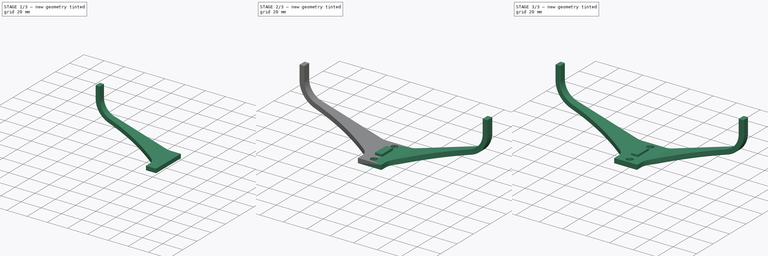
[diagram: build sequence overview — one tinted view per stage of 3, left to right]
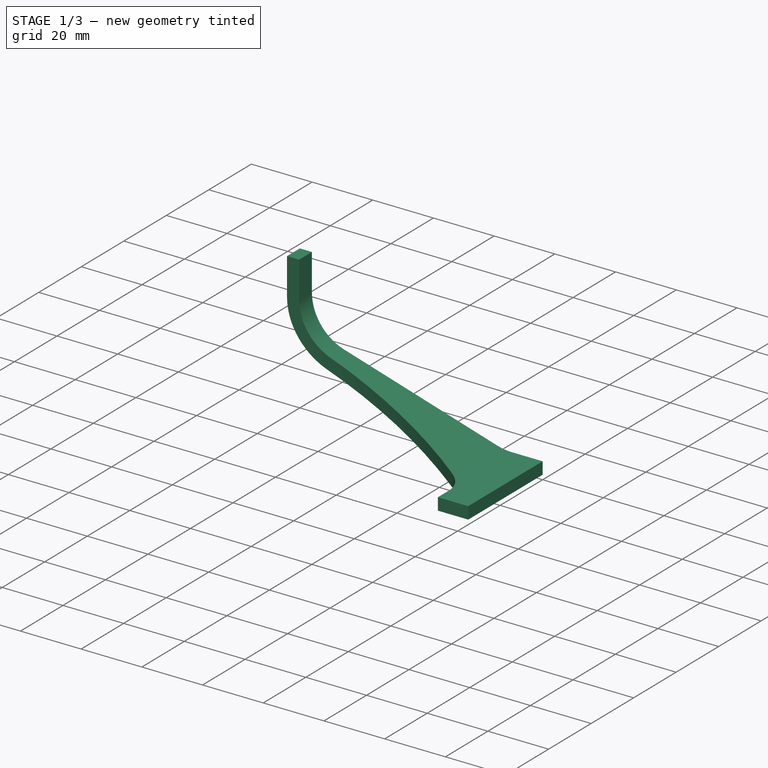
[diagram: stage 1 of 3 — iso view after this stage's code; geometry added in this stage tinted green]
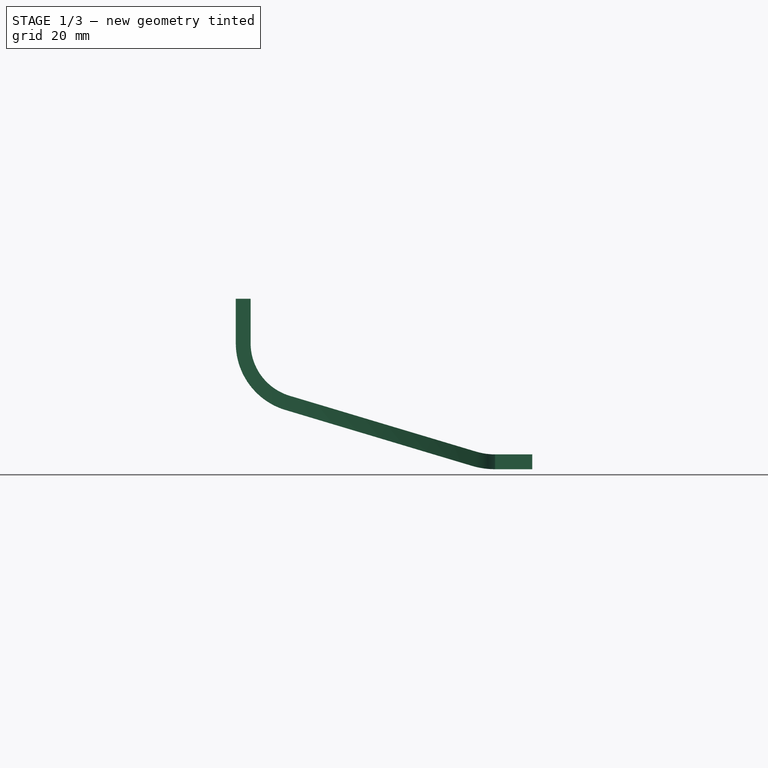
[diagram: stage 1 of 3 — front view after this stage's code; geometry added in this stage tinted green]
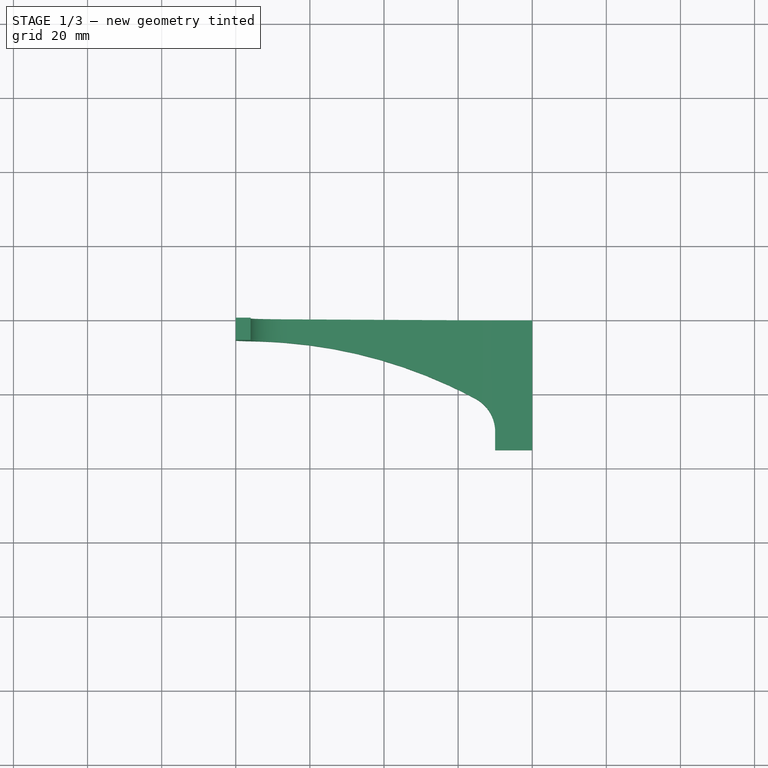
[diagram: stage 1 of 3 — top view after this stage's code; geometry added in this stage tinted green]
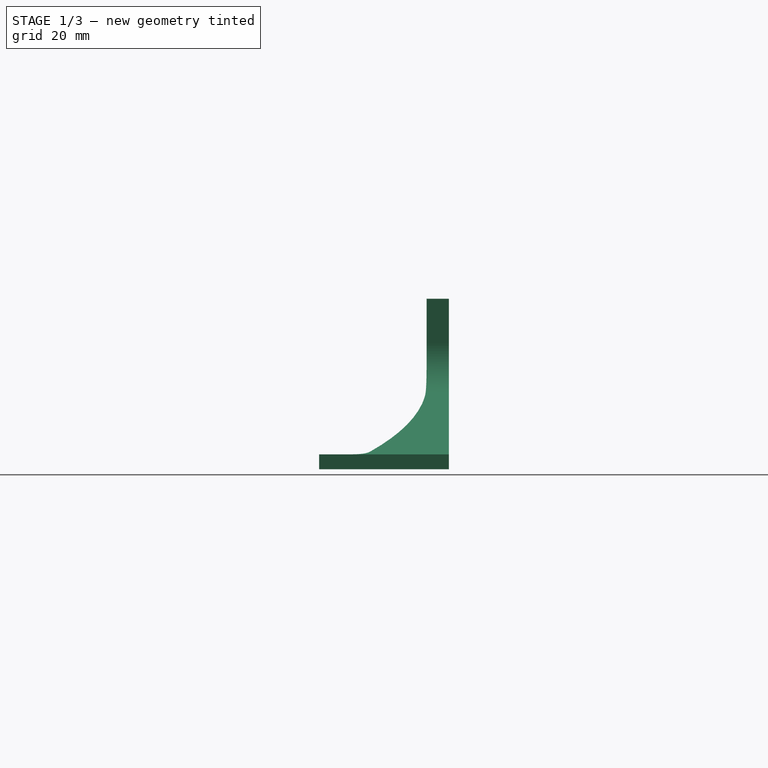
[diagram: stage 1 of 3 — right view after this stage's code; geometry added in this stage tinted green]
FCSTD DOCUMENT  (FreeCAD 0.22R38314 (Git))
Label: alignment
License: All rights reserved
LicenseURL: http://en.wikipedia.org/wiki/All_rights_reserved
objects: Sketcher::SketchObject×5, PartDesign::Pad×3, PartDesign::Pocket×2, PartDesign::Mirrored×1, PartDesign::Chamfer×1, PartDesign::Body×1
note: 26 computed .brp shape members not serialized (recipe doc carries the construction recipe); baked Part::Feature solids carry a one-line shape summary decoded from their .brp

FEATURE [Sketcher::SketchObject] Sketch
  AttachmentSupport = -> [XZ_Plane]
  FullyConstrained = true
  MapMode = 5
  Placement = pos=(0,0,0) rot=(1,0,0;1.5708rad)
  sketch-geometry (16):
    g0: LineSegment StartX=-65.441 StartY=19.815 StartZ=0 EndX=-15.1645 EndY=4.75679 EndZ=0
    g1: LineSegment StartX=-10 StartY=4 StartZ=0 EndX=0 EndY=4 EndZ=0
    g2: LineSegment StartX=0 StartY=4 StartZ=0 EndX=0 EndY=0 EndZ=0
    g3: LineSegment StartX=0 StartY=0 StartZ=0 EndX=-10 EndY=0 EndZ=0
    g4: LineSegment StartX=-16.3121 StartY=0.924971 StartZ=0 EndX=-66.5886 EndY=15.9832 EndZ=0
    g5: LineSegment StartX=-80 StartY=34 StartZ=0 EndX=-76 EndY=34 EndZ=0
    g6: ArcOfCircle CenterX=-61.1924 CenterY=34 CenterZ=0 NormalX=0 NormalY=0 NormalZ=1 AngleXU=0 Radius=14.8076 StartAngle=3.14159 EndAngle=4.42138
    g7: ArcOfCircle CenterX=-61.1924 CenterY=34 CenterZ=0 NormalX=0 NormalY=0 NormalZ=1 AngleXU=0 Radius=18.8076 StartAngle=3.14159 EndAngle=4.42138
    g8: GeomPoint X=-80 Y=20 Z=0
    g9: ArcOfCircle CenterX=-10 CenterY=22 CenterZ=0 NormalX=0 NormalY=0 NormalZ=1 AngleXU=0 Radius=18 StartAngle=4.42138 EndAngle=4.71239
    g10: GeomPoint X=-12.6377 Y=4 Z=0
    g11: ArcOfCircle CenterX=-10 CenterY=22 CenterZ=0 NormalX=0 NormalY=0 NormalZ=1 AngleXU=0 Radius=22 StartAngle=4.42138 EndAngle=4.71239
    g12: GeomPoint X=-13.2238 Y=0 Z=0
    g13: LineSegment StartX=-76 StartY=34 StartZ=0 EndX=-76 EndY=46 EndZ=0
    g14: LineSegment StartX=-76 StartY=46 StartZ=0 EndX=-80 EndY=46 EndZ=0
    g15: LineSegment StartX=-80 StartY=46 StartZ=0 EndX=-80 EndY=34 EndZ=0
  constraints (41):
    c: Horizontal(g1)
    c: Coincident(g1,g2)
    c: PointOnObject(g2,g-2)
    c: Vertical(g2)
    c: Coincident(g2,g3)
    c: Horizontal(g5)
    c: Horizontal(g3)
    c: DistanceY(g2,g2) = 4
    c: DistanceX(g8,g1) = 80
    c: DistanceX(g5,g5) = 4
    c: Parallel(g4,g0)
    c: PointOnObject(g2,g-1)
    c: Perpendicular(g6,g5)
    c: Tangent(g0,g6) = -1.5708
    c: Coincident(g6,g5)
    c: DistanceY(g8,g5) = 14
    c: PointOnObject(g8,g4)
    c: Tangent(g4,g7) = 1.5708
    c: DistanceY(g10,g5) = 30
    c: Coincident(g7,g5)
    c: Vertical(g8,g5)
    c: Perpendicular(g7,g5)
    c: PointOnObject(g10,g1)
    c: PointOnObject(g10,g0)
    c: Tangent(g1,g9) = -1.5708
    c: Tangent(g0,g9) = -1.5708
    c: DistanceX(g1,g1) = 10
    c: PointOnObject(g12,g3)
    c: PointOnObject(g12,g4)
    c: Tangent(g3,g11) = 1.5708
    c: Tangent(g4,g11) = 1.5708
    c: Coincident(g9,g11)
    c: Radius(g9) = 18
    c: Coincident(g13,g14)
    c: Coincident(g14,g15)
    c: Horizontal(g14)
    c: Vertical(g13)
    c: Vertical(g15)
    c: DistanceY(g15,g15) = 12
    c: Coincident(g15,g5)
    c: Coincident(g13,g5)
FEATURE [PartDesign::Pad] Pad
  Direction = (0,-1,2e-16)
  Length = 35
  Length2 = 10
  Placement = pos=(0,0,0) rot=(1,0,0;1.5708rad)
  Profile = -> Sketch
  ReferenceAxis = -> Sketch [N_Axis]
  Suppressed = false
  Type = 0
FEATURE [Sketcher::SketchObject] Sketch001
  AttachmentSupport = -> [XY_Plane]
  ExternalGeometry = -> [Pad]
  FullyConstrained = true
  MapMode = 5
  sketch-geometry (6):
    g0: LineSegment StartX=-80 StartY=-6 StartZ=0 EndX=-76 EndY=-6 EndZ=0
    g1: ArcOfCircle CenterX=-76 CenterY=-135 CenterZ=0 NormalX=0 NormalY=0 NormalZ=1 AngleXU=0 Radius=129 StartAngle=1.08084 EndAngle=1.5708
    g2: LineSegment StartX=-10 StartY=-30 StartZ=0 EndX=-10 EndY=-35 EndZ=0
    g3: LineSegment StartX=-10 StartY=-35 StartZ=0 EndX=-80 EndY=-35 EndZ=0
    g4: LineSegment StartX=-80 StartY=-35 StartZ=0 EndX=-80 EndY=-6 EndZ=0
    g5: ArcOfCircle CenterX=-20 CenterY=-30 CenterZ=0 NormalX=0 NormalY=0 NormalZ=1 AngleXU=0 Radius=10 StartAngle=0 EndAngle=1.08084
  constraints (17):
    c: Tangent(g0,g1) = 1.5708
    c: Vertical(g2)
    c: Coincident(g2,g3)
    c: Horizontal(g3)
    c: Coincident(g3,g4)
    c: Coincident(g4,g0)
    c: Vertical(g4)
    c: PointOnObject(g-3,g4)
    c: PointOnObject(g0,g-4)
    c: PointOnObject(g-6,g2)
    c: DistanceY(g0,g-3) = 6
    c: Tangent(g1,g5) = -1.5708
    c: Tangent(g2,g5) = 1.5708
    c: Radius(g5) = 10
    c: PointOnObject(g-5,g3)
    c: DistanceY(g2,g-6) = 30
    c: Horizontal(g0)
FEATURE [PartDesign::Pocket] Pocket
  BaseFeature = -> Pad
  Direction = (0,0,-1)
  Length = 5
  Length2 = 5
  Placement = pos=(0,0,0) rot=(1,0,0;1.5708rad)
  Profile = -> Sketch001
  ReferenceAxis = -> Sketch001 [N_Axis]
  Reversed = true
  Suppressed = false
  Type = 1
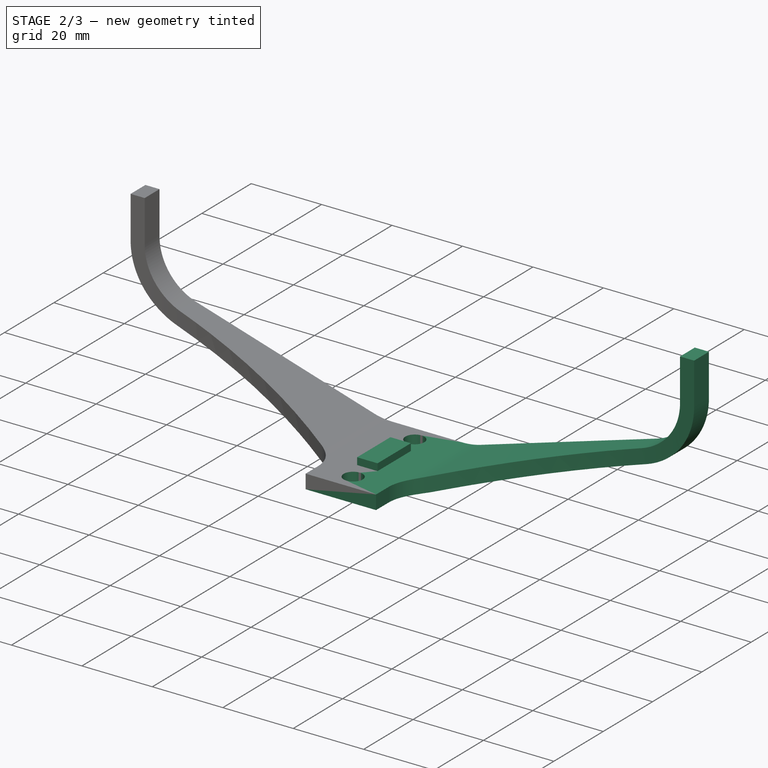
[diagram: stage 2 of 3 — iso view after this stage's code; geometry added in this stage tinted green]
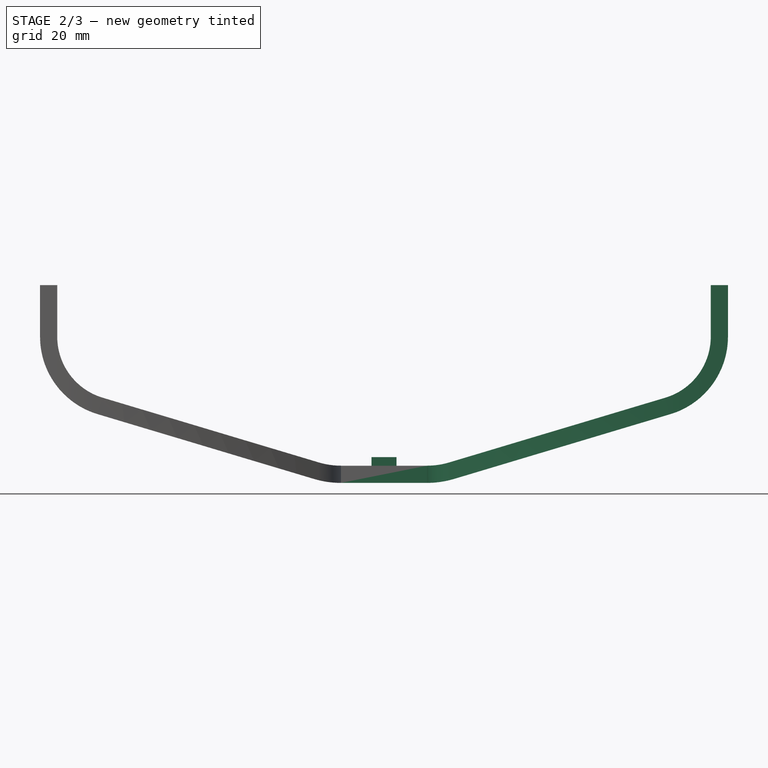
[diagram: stage 2 of 3 — front view after this stage's code; geometry added in this stage tinted green]
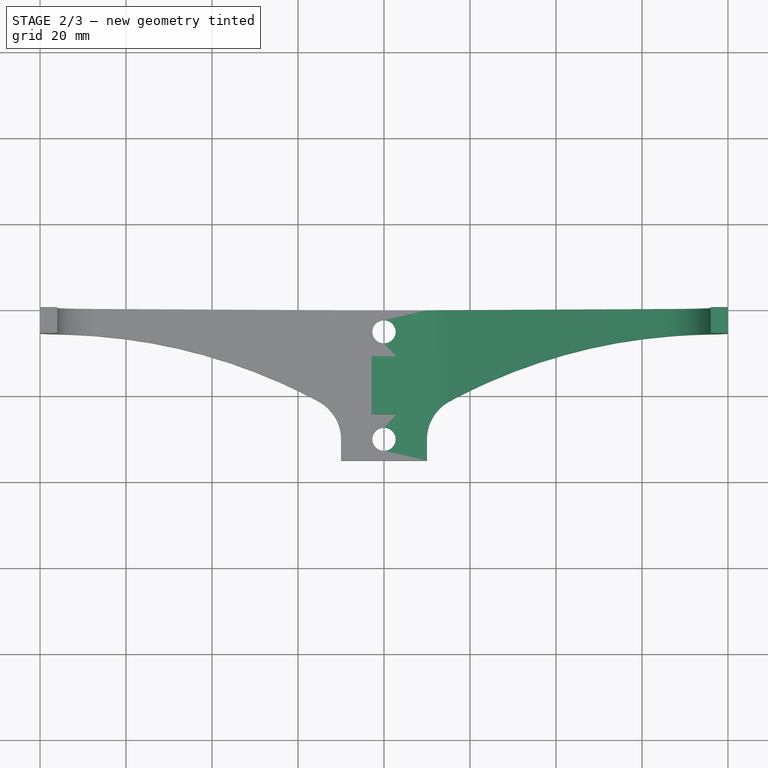
[diagram: stage 2 of 3 — top view after this stage's code; geometry added in this stage tinted green]
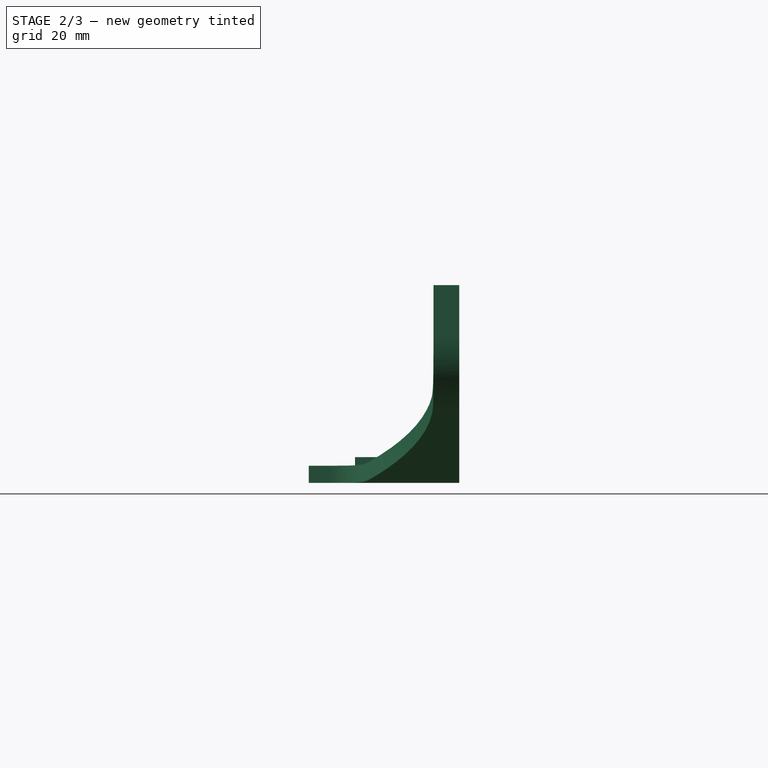
[diagram: stage 2 of 3 — right view after this stage's code; geometry added in this stage tinted green]
FEATURE [PartDesign::Mirrored] Mirrored
  BaseFeature = -> Pocket
  MirrorPlane = -> YZ_Plane
  Placement = pos=(0,0,0) rot=(1,0,0;1.5708rad)
  Refine = true
  Suppressed = false
  TransformMode = 1
FEATURE [Sketcher::SketchObject] Sketch002
  AttachmentSupport = -> [Mirrored]
  FullyConstrained = true
  MapMode = 5
  Placement = pos=(0,9e-16,4) rot=(0,0,1;3.14159rad)
  sketch-geometry (2):
    g0: Circle CenterX=0 CenterY=30 CenterZ=0 NormalX=0 NormalY=0 NormalZ=1 AngleXU=0 Radius=2.7
    g1: Circle CenterX=0 CenterY=5 CenterZ=0 NormalX=0 NormalY=0 NormalZ=1 AngleXU=0 Radius=2.7
  constraints (6):
    c: Equal(g0,g1)
    c: Diameter(g0) = 5.4
    c: Vertical(g0,g1)
    c: PointOnObject(g1,g-2)
    c: DistanceY(g-1,g1) = 5
    c: DistanceY(g1,g0) = 25
FEATURE [PartDesign::Pocket] Pocket001
  BaseFeature = -> Mirrored
  Direction = (0,0,-1)
  Length = 5
  Length2 = 5
  Placement = pos=(0,0,0) rot=(1,0,0;1.5708rad)
  Profile = -> Sketch002
  ReferenceAxis = -> Sketch002 [N_Axis]
  Suppressed = false
  Type = 0
FEATURE [Sketcher::SketchObject] Sketch003
  AttachmentSupport = -> [Pocket001]
  ExternalGeometry = -> [Pocket001]
  FullyConstrained = true
  MapMode = 5
  Placement = pos=(0,9e-16,4) rot=(0,0,1;3.14159rad)
  sketch-geometry (6):
    g0: LineSegment StartX=-2.9 StartY=24.25 StartZ=0 EndX=-2.9 EndY=10.75 EndZ=0
    g1: LineSegment StartX=-2.9 StartY=10.75 StartZ=0 EndX=2.9 EndY=10.75 EndZ=0
    g2: LineSegment StartX=2.9 StartY=10.75 StartZ=0 EndX=2.9 EndY=24.25 EndZ=0
    g3: LineSegment StartX=2.9 StartY=24.25 StartZ=0 EndX=-2.9 EndY=24.25 EndZ=0
    g4: Circle CenterX=0 CenterY=30 CenterZ=0 NormalX=0 NormalY=0 NormalZ=1 AngleXU=0 Radius=5.75
    g5: Circle CenterX=0 CenterY=5 CenterZ=0 NormalX=0 NormalY=0 NormalZ=1 AngleXU=0 Radius=5.75
  constraints (17):
    c: Coincident(g0,g1)
    c: Coincident(g1,g2)
    c: Coincident(g2,g3)
    c: Coincident(g3,g0)
    c: Vertical(g0)
    c: Vertical(g2)
    c: Horizontal(g3)
    c: DistanceX(g3,g3) = 5.8
    c: Symmetric(g1,g0,g-2)
    c: Coincident(g4,g-3)
    c: Coincident(g5,g-4)
    c: Diameter(g-4) = 5.4
    c: Diameter(g-3) = 5.4
    c: Equal(g4,g5)
    c: Diameter(g4) = 11.5
    c: Tangent(g4,g3)
    c: Tangent(g1,g5)
FEATURE [PartDesign::Pad] Pad001
  BaseFeature = -> Pocket001
  Direction = (0,0,1)
  Length = 2
  Length2 = 10
  Placement = pos=(0,0,0) rot=(1,0,0;1.5708rad)
  Profile = -> Sketch003
  ReferenceAxis = -> Sketch003 [N_Axis]
  Suppressed = false
  Type = 0
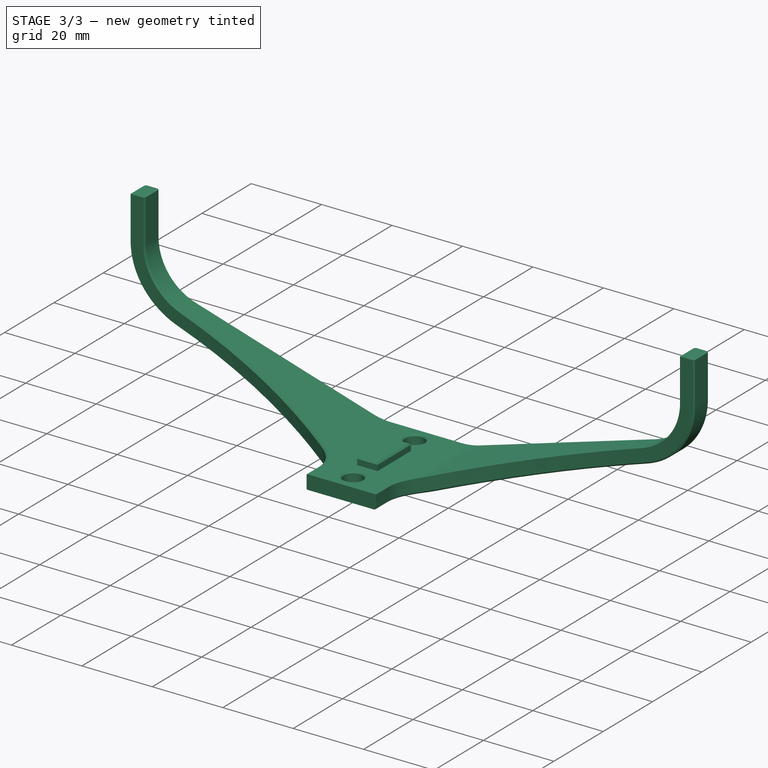
[diagram: stage 3 of 3 — iso view after this stage's code; geometry added in this stage tinted green]
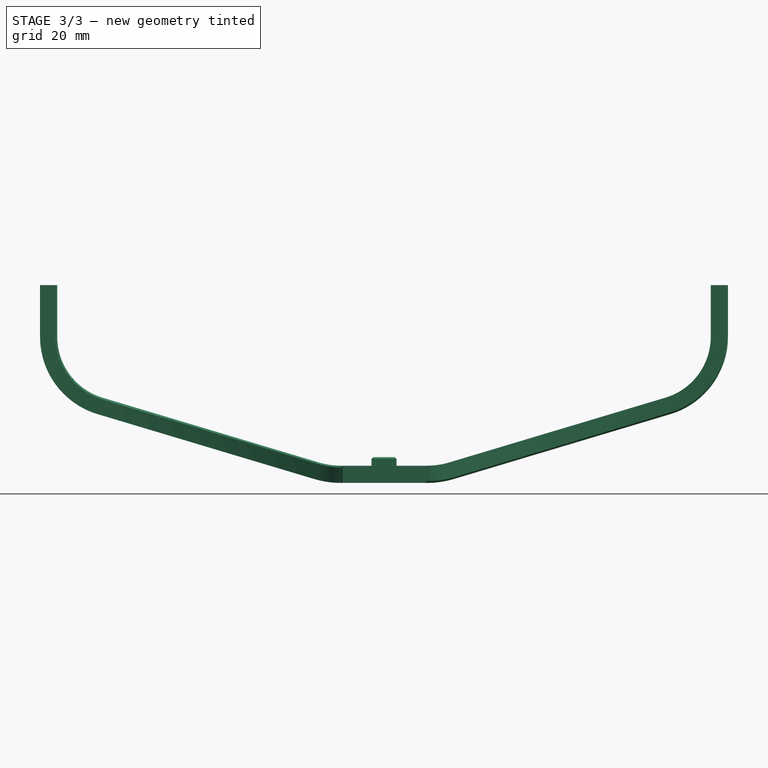
[diagram: stage 3 of 3 — front view after this stage's code; geometry added in this stage tinted green]
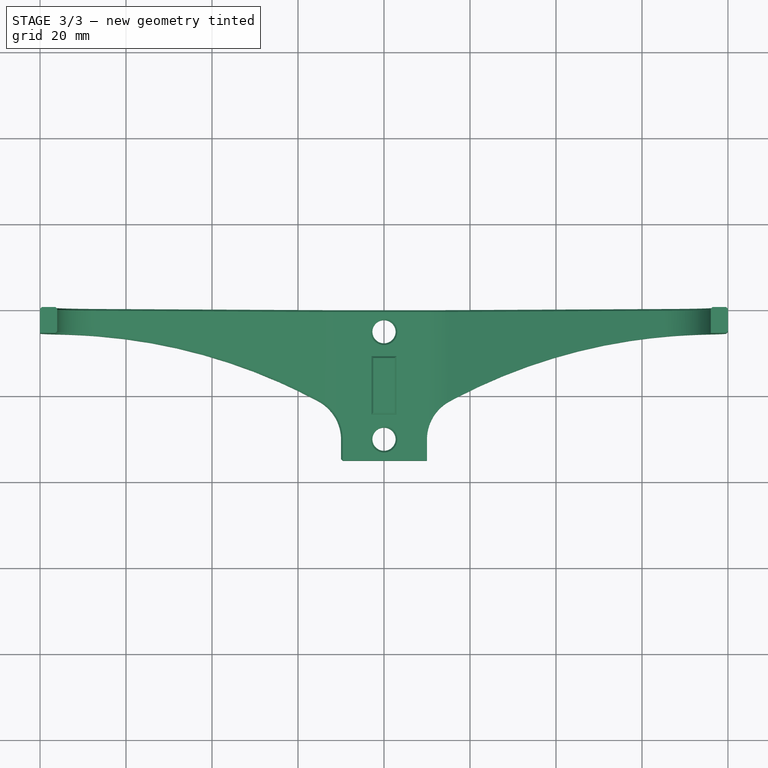
[diagram: stage 3 of 3 — top view after this stage's code; geometry added in this stage tinted green]
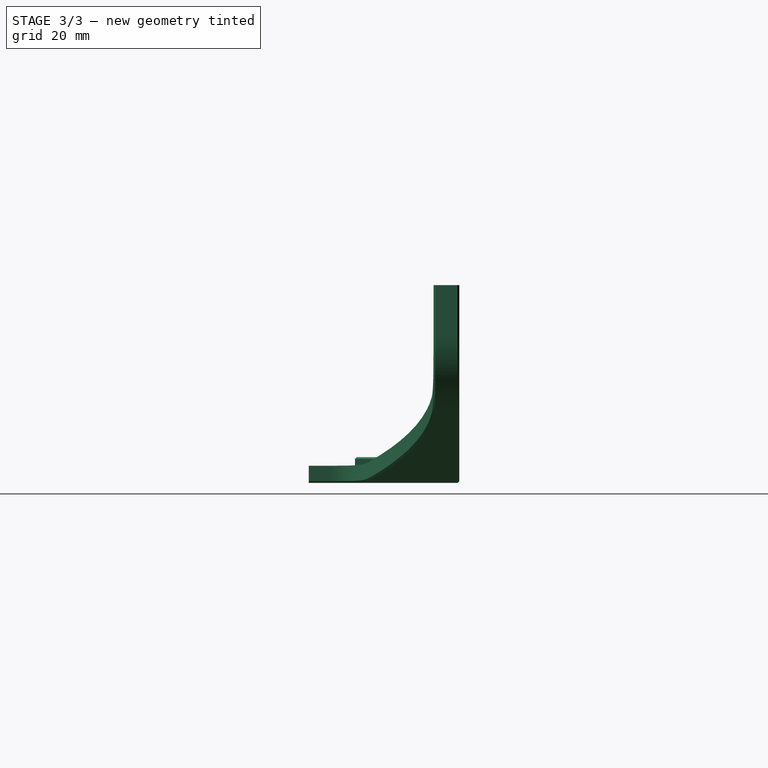
[diagram: stage 3 of 3 — right view after this stage's code; geometry added in this stage tinted green]
FEATURE [PartDesign::Chamfer] Chamfer
  Angle = 45
  Base = -> Pad001 [Edge15,Edge67,Edge47,Edge18,Edge33,Edge31,Edge81,Edge61,Face37,Edge40,Edge45,Edge82,Edge1,Edge72,Edge71]
  BaseFeature = -> Pad001
  ChamferType = 0
  FlipDirection = false
  Placement = pos=(0,0,0) rot=(1,0,0;1.5708rad)
  Size = 0.4
  Size2 = 1
  SupportTransform = false
  Suppressed = false
  UseAllEdges = false
FEATURE [Sketcher::SketchObject] Sketch004
  AttachmentOffset = pos=(0,0,0.4) rot=(0,0,1;0rad)
  AttachmentSupport = -> [Chamfer]
  ExternalGeometry = -> [Chamfer]
  FullyConstrained = false
  MapMode = 1
  Placement = pos=(10,-30,4.4) rot=(0,0,1;3.14159rad)
  sketch-geometry (12):
    g0: LineSegment StartX=-3.7502 StartY=-19.45 StartZ=0 EndX=-3.7502 EndY=0 EndZ=0
    g1: LineSegment StartX=-3.7502 StartY=0 StartZ=0 EndX=3.7502 EndY=0 EndZ=0
    g2: LineSegment StartX=3.7502 StartY=0 StartZ=0 EndX=3.7502 EndY=-19.45 EndZ=0
    g3: LineSegment StartX=3.7502 StartY=-19.45 StartZ=0 EndX=2.1029 EndY=-19.45 EndZ=0
    g4: LineSegment StartX=2.1029 StartY=-19.45 StartZ=0 EndX=2.1029 EndY=10.886 EndZ=0
    g5: LineSegment StartX=2.1029 StartY=10.886 StartZ=0 EndX=1.7029 EndY=10.886 EndZ=0
    g6: LineSegment StartX=1.7029 StartY=10.886 StartZ=0 EndX=1.70712 EndY=-19.45 EndZ=0
    g7: LineSegment StartX=1.70712 StartY=-19.45 StartZ=0 EndX=-2.15142 EndY=-19.45 EndZ=0
    g8: LineSegment StartX=-2.15142 StartY=-19.45 StartZ=0 EndX=-2.15142 EndY=10.9068 EndZ=0
    g9: LineSegment StartX=-2.15142 StartY=10.9068 StartZ=0 EndX=-2.55142 EndY=10.9068 EndZ=0
    g10: LineSegment StartX=-2.55142 StartY=10.9068 StartZ=0 EndX=-2.55142 EndY=-19.45 EndZ=0
    g11: LineSegment StartX=-2.55142 StartY=-19.45 StartZ=0 EndX=-3.7502 EndY=-19.45 EndZ=0
  constraints (29):
    c: Coincident(g0,g1)
    c: Coincident(g1,g2)
    c: Vertical(g0)
    c: Vertical(g2)
    c: PointOnObject(g1,g-1)
    c: Symmetric(g1,g0,g-2)
    c: DistanceY(g2,g-4) = 0.2
    c: Coincident(g2,g3)
    c: Horizontal(g3)
    c: Coincident(g3,g4)
    c: Vertical(g4)
    c: Coincident(g4,g5)
    c: Horizontal(g5)
    c: Coincident(g5,g6)
    c: Coincident(g6,g7)
    c: Horizontal(g7)
    c: Coincident(g7,g8)
    c: Coincident(g8,g9)
    c: Coincident(g9,g10)
    c: Vertical(g10)
    c: Coincident(g10,g11)
    c: Coincident(g11,g0)
    c: Horizontal(g11)
    c: Horizontal(g9)
    c: Horizontal(g3,g6)
    c: Horizontal(g7,g10)
    c: Vertical(g8)
    c: DistanceX(g9,g9) = 0.4
    c: Equal(g9,g5)
FEATURE [PartDesign::Pad] Pad002
  BaseFeature = -> Chamfer
  Direction = (0,0,1)
  Length = 1.3
  Length2 = 10
  Placement = pos=(0,0,0) rot=(1,0,0;1.5708rad)
  Profile = -> Sketch004
  ReferenceAxis = -> Sketch004 [N_Axis]
  Suppressed = false
  Type = 0
FEATURE [PartDesign::Body] Body
  AllowCompound = false
  Group = -> [Sketch,Pad,Sketch001,Pocket,Mirrored,Sketch002,Pocket001,Sketch003,Pad001,Chamfer,Sketch004,Pad002]
  Origin = -> Origin
  Tip = -> Pad002
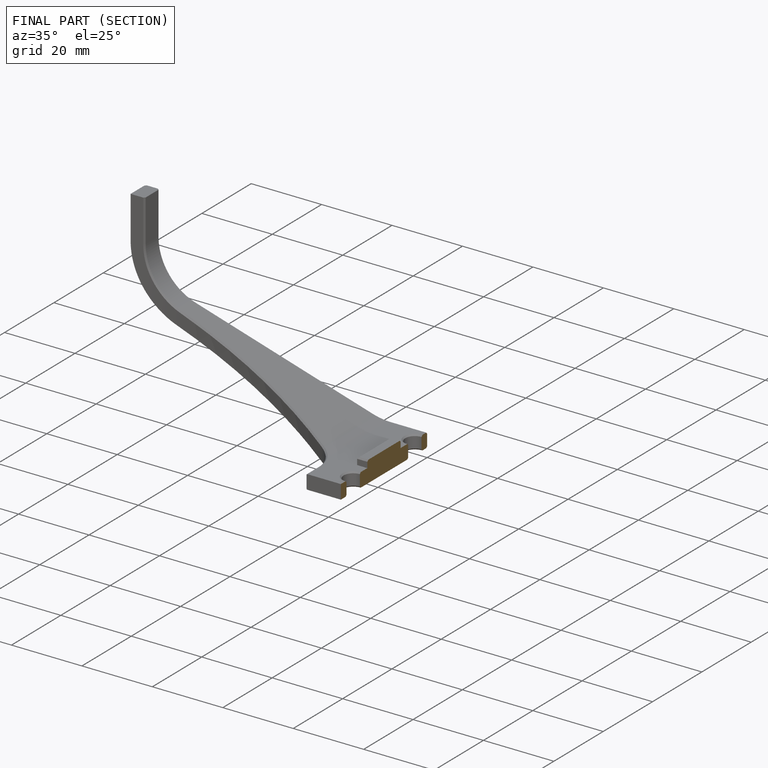
[diagram: finished part — half-section view (interior)]
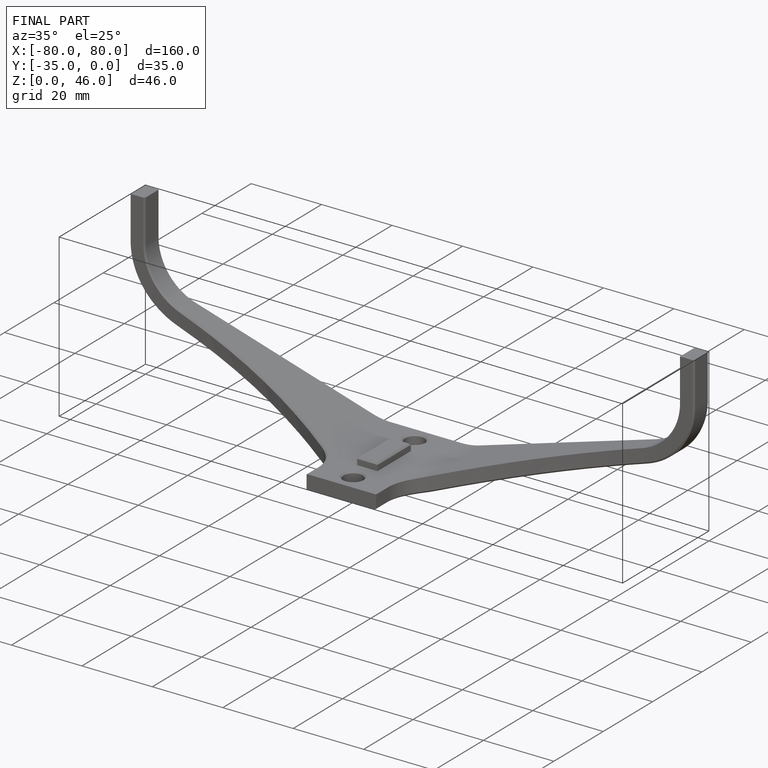
[diagram: finished part — iso view with bounding-box wireframe]
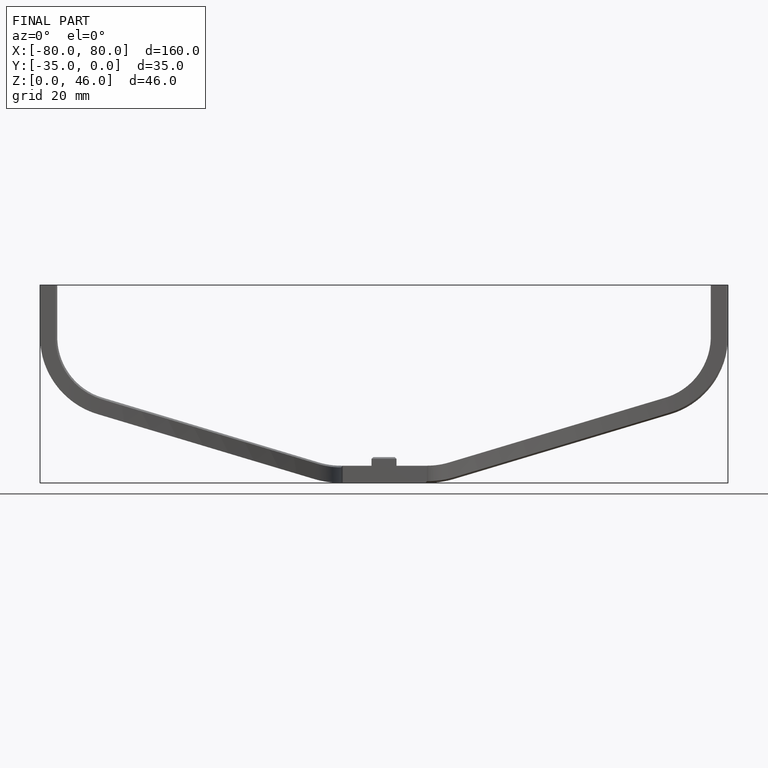
[diagram: finished part — front view with bounding-box wireframe]
